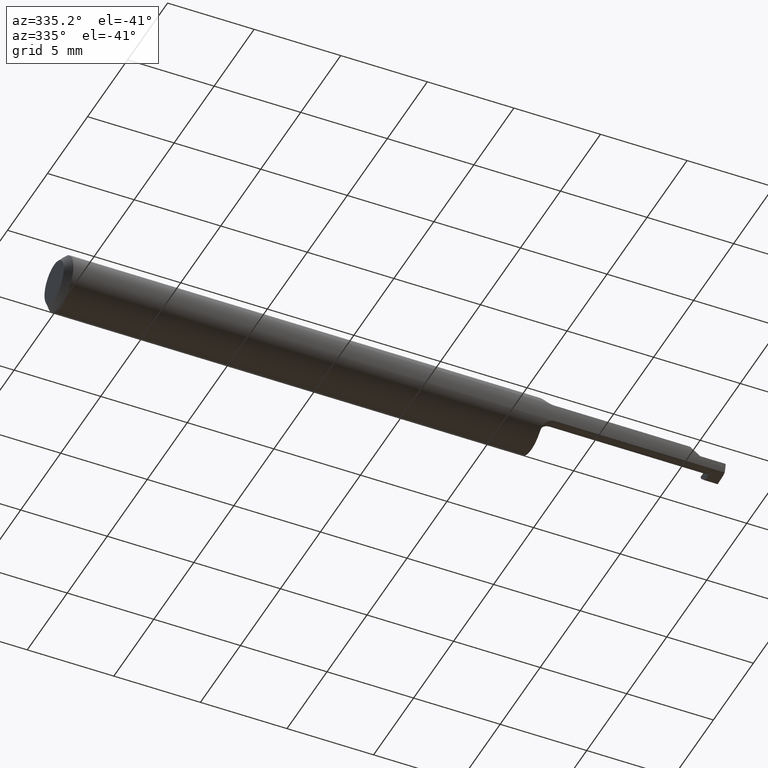
[diagram: clean part render]
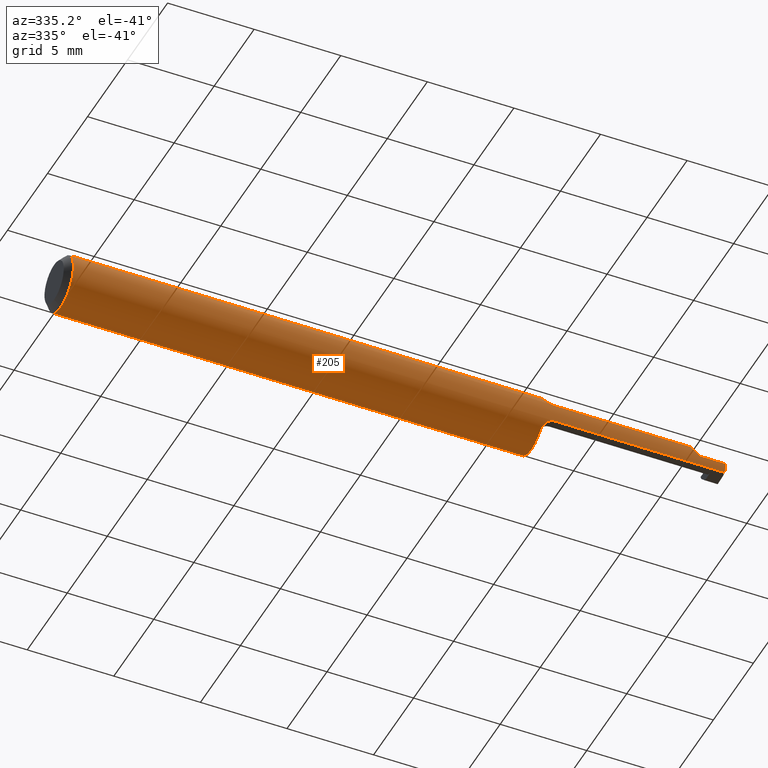
[diagram: same view with one face highlighted and labeled with its STEP entity id]
A machine part, auxiliary view. The second image highlights one B-rep face of the part: STEP entity #205.
In plain terms, the highlighted cylindrical surface (edge-blend (fillet) strip) has radius 1.5875 mm, axis along (-1, -0, -0).
Its self-contained STEP definition (entity closure, byte-faithful):
#1 = CARTESIAN_POINT ( 'NONE',  ( 1.099393845276374959, -0.05804125348544835611, 0.02346417240968139140 ) ) ;
#14 = CARTESIAN_POINT ( 'NONE',  ( 1.110000000000000098, -0.05886363636363634022, -0.02100767274234791038 ) ) ;
#25 = CARTESIAN_POINT ( 'NONE',  ( 1.084999999999999964, 0.000000000000000000, 0.000000000000000000 ) ) ;
#28 = VERTEX_POINT ( 'NONE', #52 ) ;
#31 = ORIENTED_EDGE ( 'NONE', *, *, #657, .F. ) ;
#33 = CARTESIAN_POINT ( 'NONE',  ( 1.084999999999999964, -0.04093434343434342731, 0.04722954083620996973 ) ) ;
#35 = ORIENTED_EDGE ( 'NONE', *, *, #661, .F. ) ;
#47 = VERTEX_POINT ( 'NONE', #550 ) ;
#52 = CARTESIAN_POINT ( 'NONE',  ( 1.084999999999999964, -0.04093434343434342731, 0.04722954083620996973 ) ) ;
#56 = ORIENTED_EDGE ( 'NONE', *, *, #226, .F. ) ;
#59 = VECTOR ( 'NONE', #246, 39.37007874015748143 ) ;
#62 = CARTESIAN_POINT ( 'NONE',  ( 1.084999999999999964, 0.000000000000000000, 0.000000000000000000 ) ) ;
#76 = EDGE_CURVE ( 'NONE', #435, #228, #102, .T. ) ;
#82 = DIRECTION ( 'NONE',  ( -1.000000000000000000, -0.000000000000000000, -0.000000000000000000 ) ) ;
#87 = VECTOR ( 'NONE', #698, 39.37007874015748143 ) ;
#95 = VECTOR ( 'NONE', #299, 39.37007874015748143 ) ;
#102 = CIRCLE ( 'NONE', #602, 0.06250000000000000000 ) ;
#103 = CARTESIAN_POINT ( 'NONE',  ( 1.091603424264790956, -0.05494411641100521021, 0.03000830826366647497 ) ) ;
#107 = CARTESIAN_POINT ( 'NONE',  ( 1.497608834546441781, -0.06126942711424129134, -0.01426663133107638343 ) ) ;
#110 = CIRCLE ( 'NONE', #543, 0.06250000000000000000 ) ;
#113 = CARTESIAN_POINT ( 'NONE',  ( 0.01499999999999999771, 0.03391164991562633374, 0.05250000000000000500 ) ) ;
#117 = VERTEX_POINT ( 'NONE', #615 ) ;
#126 = CARTESIAN_POINT ( 'NONE',  ( 0.000000000000000000, 0.03391164991562636150, 0.05249999999999998418 ) ) ;
#127 = CARTESIAN_POINT ( 'NONE',  ( 1.418992327257652342, -0.05886363636363636798, 0.02100767274234790691 ) ) ;
#129 = AXIS2_PLACEMENT_3D ( 'NONE', #25, #250, #392 ) ;
#130 = ORIENTED_EDGE ( 'NONE', *, *, #457, .T. ) ;
#132 = FACE_OUTER_BOUND ( 'NONE', #494, .T. ) ;
#138 = ORIENTED_EDGE ( 'NONE', *, *, #531, .T. ) ;
#139 = CARTESIAN_POINT ( 'NONE',  ( 1.084999999999999964, 0.03391164991562636150, 0.05250000000000000500 ) ) ;
#145 = AXIS2_PLACEMENT_3D ( 'NONE', #619, #82, #289 ) ;
#154 = CARTESIAN_POINT ( 'NONE',  ( 1.084999999999999964, -0.04415400649228699848, -0.04443902475192727797 ) ) ;
#165 = B_SPLINE_CURVE_WITH_KNOTS ( 'NONE', 3,
 ( #177, #235, #450, #404, #304, #251 ),
 .UNSPECIFIED., .F., .F.,
 ( 4, 2, 4 ),
 ( 1.965804573186380129E-07, 0.0004062936322054141666, 0.0008123906839535096789 ),
 .UNSPECIFIED. ) ;
#166 = CARTESIAN_POINT ( 'NONE',  ( 2.324973294346407873E-32, -0.06250000000000000000, 1.867474214418933224E-16 ) ) ;
#171 = EDGE_CURVE ( 'NONE', #564, #512, #165, .T. ) ;
#176 = CARTESIAN_POINT ( 'NONE',  ( 1.440000000000000169, -0.06250000000000000000, 7.469896857675718968E-18 ) ) ;
#177 = CARTESIAN_POINT ( 'NONE',  ( 1.110000000000000098, -0.05886363636363634022, -0.02100767274234791038 ) ) ;
#179 = ORIENTED_EDGE ( 'NONE', *, *, #252, .F. ) ;
#185 = CIRCLE ( 'NONE', #495, 0.06250000000000000000 ) ;
#186 = VERTEX_POINT ( 'NONE', #622 ) ;
#190 = VERTEX_POINT ( 'NONE', #127 ) ;
#202 = VERTEX_POINT ( 'NONE', #454 ) ;
#205 = ADVANCED_FACE ( 'NONE', ( #132 ), #570, .T. ) ;
#206 = CARTESIAN_POINT ( 'NONE',  ( 1.085655463982612590, -0.04704581396278029182, -0.04134126699320148784 ) ) ;
#208 = ORIENTED_EDGE ( 'NONE', *, *, #678, .F. ) ;
#215 = LINE ( 'NONE', #431, #507 ) ;
#225 = CARTESIAN_POINT ( 'NONE',  ( 1.497938178933349906, -0.06249997390100388295, -5.711719386472008966E-05 ) ) ;
#226 = EDGE_CURVE ( 'NONE', #47, #645, #110, .T. ) ;
#228 = VERTEX_POINT ( 'NONE', #139 ) ;
#230 = B_SPLINE_CURVE_WITH_KNOTS ( 'NONE', 3,
 ( #378, #648, #103, #1, #707, #447 ),
 .UNSPECIFIED., .F., .F.,
 ( 4, 2, 4 ),
 ( 0.0003511697577770737542, 0.0007558328471938553349, 0.001160495936610636807 ),
 .UNSPECIFIED. ) ;
#232 = ORIENTED_EDGE ( 'NONE', *, *, #332, .F. ) ;
#235 = CARTESIAN_POINT ( 'NONE',  ( 1.104578158336205984, -0.05886363636363638879, -0.02100767274234780282 ) ) ;
#244 = ORIENTED_EDGE ( 'NONE', *, *, #465, .F. ) ;
#246 = DIRECTION ( 'NONE',  ( -1.000000000000000000, -0.000000000000000000, -0.000000000000000000 ) ) ;
#249 = B_SPLINE_CURVE_WITH_KNOTS ( 'NONE', 3,
 ( #33, #474, #483, #307 ),
 .UNSPECIFIED., .F., .F.,
 ( 4, 4 ),
 ( 3.010157611159452499E-05, 0.0003511697577770737542 ),
 .UNSPECIFIED. ) ;
#250 = DIRECTION ( 'NONE',  ( 1.000000000000000000, 0.000000000000000000, 0.000000000000000000 ) ) ;
#251 = CARTESIAN_POINT ( 'NONE',  ( 1.087018996248180880, -0.04950000000000028683, -0.03815756805667851886 ) ) ;
#252 = EDGE_CURVE ( 'NONE', #645, #117, #562, .T. ) ;
#259 = EDGE_CURVE ( 'NONE', #512, #435, #668, .T. ) ;
#275 = ORIENTED_EDGE ( 'NONE', *, *, #426, .T. ) ;
#289 = DIRECTION ( 'NONE',  ( 0.000000000000000000, 0.000000000000000000, 1.000000000000000000 ) ) ;
#290 = CARTESIAN_POINT ( 'NONE',  ( 1.418992327257652342, -0.05886363636363636798, 0.02100767274234790691 ) ) ;
#299 = DIRECTION ( 'NONE',  ( -1.000000000000000000, -0.000000000000000000, -0.000000000000000000 ) ) ;
#304 = CARTESIAN_POINT ( 'NONE',  ( 1.088742250285846369, -0.05260163983985812614, -0.03413395806547173811 ) ) ;
#305 = VERTEX_POINT ( 'NONE', #584 ) ;
#307 = CARTESIAN_POINT ( 'NONE',  ( 1.087018996248179992, -0.04950000000000040479, 0.03815756805667906010 ) ) ;
#322 = CARTESIAN_POINT ( 'NONE',  ( 1.084999999999999964, -0.04093434343434342731, -0.04722954083620996973 ) ) ;
#324 =( BOUNDED_CURVE ( )  B_SPLINE_CURVE ( 3, ( #176, #341, #557, #290 ),
 .UNSPECIFIED., .F., .T. ) 
 B_SPLINE_CURVE_WITH_KNOTS ( ( 4, 4 ),
 ( 4.712388980384689674, 5.055186081087965633 ),
 .UNSPECIFIED. ) 
 CURVE ( )  GEOMETRIC_REPRESENTATION_ITEM ( )  RATIONAL_B_SPLINE_CURVE ( ( 1.000000000000000000, 0.9902314620528109845, 0.9902314620528109845, 1.000000000000000000 ) ) 
 REPRESENTATION_ITEM ( '' )  );
#325 = CARTESIAN_POINT ( 'NONE',  ( 1.440000000000000169, -0.06250000000000000000, 7.469896857675718968E-18 ) ) ;
#330 = CARTESIAN_POINT ( 'NONE',  ( 1.497516218632006790, -0.05886363636363634716, -0.02100767274234790691 ) ) ;
#332 = EDGE_CURVE ( 'NONE', #28, #186, #249, .T. ) ;
#335 = CIRCLE ( 'NONE', #129, 0.06250000000000000000 ) ;
#336 = CARTESIAN_POINT ( 'NONE',  ( 1.087018996248180880, -0.04950000000000028683, -0.03815756805667851886 ) ) ;
#341 = CARTESIAN_POINT ( 'NONE',  ( 1.432823202637437676, -0.06250000000000001388, 0.007176797362562483025 ) ) ;
#345 = ORIENTED_EDGE ( 'NONE', *, *, #695, .T. ) ;
#361 = VECTOR ( 'NONE', #542, 39.37007874015748143 ) ;
#378 = CARTESIAN_POINT ( 'NONE',  ( 1.087018996248179992, -0.04950000000000040479, 0.03815756805667906010 ) ) ;
#389 = CARTESIAN_POINT ( 'NONE',  ( 1.497750868070190311, -0.06249343286152817672, -0.007214590606946776584 ) ) ;
#392 = DIRECTION ( 'NONE',  ( 0.000000000000000000, 0.000000000000000000, -1.000000000000000000 ) ) ;
#396 = CARTESIAN_POINT ( 'NONE',  ( 0.01499999999999999944, 0.000000000000000000, 0.000000000000000000 ) ) ;
#404 = CARTESIAN_POINT ( 'NONE',  ( 1.091604359762833321, -0.05495195758859176133, -0.02999640689160477935 ) ) ;
#423 = VERTEX_POINT ( 'NONE', #113 ) ;
#426 = EDGE_CURVE ( 'NONE', #460, #530, #522, .T. ) ;
#429 = CARTESIAN_POINT ( 'NONE',  ( 1.087018996248180880, -0.04950000000000028683, -0.03815756805667851886 ) ) ;
#431 = CARTESIAN_POINT ( 'NONE',  ( 1.289000000000000146, -0.05886363636363634716, 0.02100767274234790691 ) ) ;
#433 = DIRECTION ( 'NONE',  ( 0.02616100201822768243, -0.0009135623211514310024, 0.9996573249755575929 ) ) ;
#435 = VERTEX_POINT ( 'NONE', #322 ) ;
#443 = CARTESIAN_POINT ( 'NONE',  ( 1.497516218632006790, -0.05886363636363634716, -0.02100767274234790691 ) ) ;
#447 = CARTESIAN_POINT ( 'NONE',  ( 1.110000000000000098, -0.05886363636363635410, 0.02100767274234789997 ) ) ;
#450 = CARTESIAN_POINT ( 'NONE',  ( 1.099467156020460523, -0.05806285849851711839, -0.02341381071518016527 ) ) ;
#454 = CARTESIAN_POINT ( 'NONE',  ( 1.497939674599986448, -0.06249999999999997224, 1.283091683266196761E-19 ) ) ;
#457 = EDGE_CURVE ( 'NONE', #202, #537, #605, .T. ) ;
#460 = VERTEX_POINT ( 'NONE', #443 ) ;
#465 = EDGE_CURVE ( 'NONE', #186, #305, #230, .T. ) ;
#474 = CARTESIAN_POINT ( 'NONE',  ( 1.084999999999999520, -0.04415449936013654542, 0.04443859757814036526 ) ) ;
#483 = CARTESIAN_POINT ( 'NONE',  ( 1.085650379969449686, -0.04703666338055135371, 0.04135313760874536476 ) ) ;
#487 = CARTESIAN_POINT ( 'NONE',  ( 1.497938178933349906, -0.06249997390100388295, -5.711719386472008966E-05 ) ) ;
#494 = EDGE_LOOP ( 'NONE', ( #275, #138, #130, #345, #623, #244, #232, #208, #179, #56, #31, #589, #690, #574, #608, #35 ) ) ;
#495 = AXIS2_PLACEMENT_3D ( 'NONE', #569, #672, #618 ) ;
#499 = EDGE_CURVE ( 'NONE', #305, #190, #215, .T. ) ;
#507 = VECTOR ( 'NONE', #549, 39.37007874015748143 ) ;
#512 = VERTEX_POINT ( 'NONE', #336 ) ;
#513 = LINE ( 'NONE', #614, #59 ) ;
#522 =( BOUNDED_CURVE ( )  B_SPLINE_CURVE ( 3, ( #330, #107, #389, #225 ),
 .UNSPECIFIED., .F., .T. ) 
 B_SPLINE_CURVE_WITH_KNOTS ( ( 4, 4 ),
 ( 0.3009111819473466731, 0.6427944074215805603 ),
 .UNSPECIFIED. ) 
 CURVE ( )  GEOMETRIC_REPRESENTATION_ITEM ( )  RATIONAL_B_SPLINE_CURVE ( ( 1.000000000000000000, 0.9902833505010703030, 0.9902833505010703030, 1.000000000000000000 ) ) 
 REPRESENTATION_ITEM ( '' )  );
#530 = VERTEX_POINT ( 'NONE', #487 ) ;
#531 = EDGE_CURVE ( 'NONE', #530, #202, #552, .T. ) ;
#536 = CARTESIAN_POINT ( 'NONE',  ( 1.084999999999999964, -0.04093434343434342731, -0.04722954083620996973 ) ) ;
#537 = VERTEX_POINT ( 'NONE', #325 ) ;
#542 = DIRECTION ( 'NONE',  ( -1.000000000000000000, -0.000000000000000000, -0.000000000000000000 ) ) ;
#543 = AXIS2_PLACEMENT_3D ( 'NONE', #396, #559, #626 ) ;
#549 = DIRECTION ( 'NONE',  ( 1.000000000000000000, 0.000000000000000000, 0.000000000000000000 ) ) ;
#550 = CARTESIAN_POINT ( 'NONE',  ( 0.01499999999999999944, 0.000000000000000000, -0.06250000000000000000 ) ) ;
#552 = LINE ( 'NONE', #705, #585 ) ;
#557 = CARTESIAN_POINT ( 'NONE',  ( 1.425751565500938511, -0.06127592132893010940, 0.01424843449906176319 ) ) ;
#559 = DIRECTION ( 'NONE',  ( -1.000000000000000000, -0.000000000000000000, -0.000000000000000000 ) ) ;
#562 = LINE ( 'NONE', #566, #87 ) ;
#564 = VERTEX_POINT ( 'NONE', #14 ) ;
#566 = CARTESIAN_POINT ( 'NONE',  ( 0.000000000000000000, -0.03391164991562636150, 0.05249999999999998418 ) ) ;
#569 = CARTESIAN_POINT ( 'NONE',  ( 0.01499999999999999944, 0.000000000000000000, 0.000000000000000000 ) ) ;
#570 = CYLINDRICAL_SURFACE ( 'NONE', #145, 0.06250000000000000000 ) ;
#574 = ORIENTED_EDGE ( 'NONE', *, *, #259, .F. ) ;
#584 = CARTESIAN_POINT ( 'NONE',  ( 1.110000000000000098, -0.05886363636363635410, 0.02100767274234789997 ) ) ;
#585 = VECTOR ( 'NONE', #433, 39.37007874015748854 ) ;
#589 = ORIENTED_EDGE ( 'NONE', *, *, #642, .F. ) ;
#602 = AXIS2_PLACEMENT_3D ( 'NONE', #62, #663, #660 ) ;
#605 = LINE ( 'NONE', #166, #361 ) ;
#608 = ORIENTED_EDGE ( 'NONE', *, *, #171, .F. ) ;
#610 = LINE ( 'NONE', #126, #95 ) ;
#614 = CARTESIAN_POINT ( 'NONE',  ( 1.289000000000000146, -0.05886363636363634716, -0.02100767274234790691 ) ) ;
#615 = CARTESIAN_POINT ( 'NONE',  ( 1.084999999999999964, -0.03391164991562636150, 0.05250000000000000500 ) ) ;
#618 = DIRECTION ( 'NONE',  ( 0.000000000000000000, 0.000000000000000000, 1.000000000000000000 ) ) ;
#619 = CARTESIAN_POINT ( 'NONE',  ( 0.000000000000000000, 0.000000000000000000, 0.000000000000000000 ) ) ;
#622 = CARTESIAN_POINT ( 'NONE',  ( 1.087018996248179992, -0.04950000000000040479, 0.03815756805667906010 ) ) ;
#623 = ORIENTED_EDGE ( 'NONE', *, *, #499, .F. ) ;
#626 = DIRECTION ( 'NONE',  ( 0.000000000000000000, 0.000000000000000000, 1.000000000000000000 ) ) ;
#642 = EDGE_CURVE ( 'NONE', #228, #423, #610, .T. ) ;
#645 = VERTEX_POINT ( 'NONE', #676 ) ;
#648 = CARTESIAN_POINT ( 'NONE',  ( 1.088743952264392911, -0.05260470318649956845, 0.03412998413143175647 ) ) ;
#657 = EDGE_CURVE ( 'NONE', #423, #47, #185, .T. ) ;
#660 = DIRECTION ( 'NONE',  ( 0.000000000000000000, 0.000000000000000000, -1.000000000000000000 ) ) ;
#661 = EDGE_CURVE ( 'NONE', #460, #564, #513, .T. ) ;
#663 = DIRECTION ( 'NONE',  ( 1.000000000000000000, 0.000000000000000000, 0.000000000000000000 ) ) ;
#668 = B_SPLINE_CURVE_WITH_KNOTS ( 'NONE', 3,
 ( #429, #206, #154, #536 ),
 .UNSPECIFIED., .F., .F.,
 ( 4, 4 ),
 ( 0.0008123906839535096789, 0.001133716745525404756 ),
 .UNSPECIFIED. ) ;
#672 = DIRECTION ( 'NONE',  ( -1.000000000000000000, -0.000000000000000000, -0.000000000000000000 ) ) ;
#676 = CARTESIAN_POINT ( 'NONE',  ( 0.01499999999999999944, -0.03391164991562636150, 0.05249999999999998418 ) ) ;
#678 = EDGE_CURVE ( 'NONE', #117, #28, #335, .T. ) ;
#690 = ORIENTED_EDGE ( 'NONE', *, *, #76, .F. ) ;
#695 = EDGE_CURVE ( 'NONE', #537, #190, #324, .T. ) ;
#698 = DIRECTION ( 'NONE',  ( 1.000000000000000000, 0.000000000000000000, 0.000000000000000000 ) ) ;
#705 = CARTESIAN_POINT ( 'NONE',  ( 1.496631624499075164, -0.06245432188394240552, -0.04998286624877784634 ) ) ;
#707 = CARTESIAN_POINT ( 'NONE',  ( 1.104561149086641381, -0.05886363636377033720, 0.02100767274197258561 ) ) ;